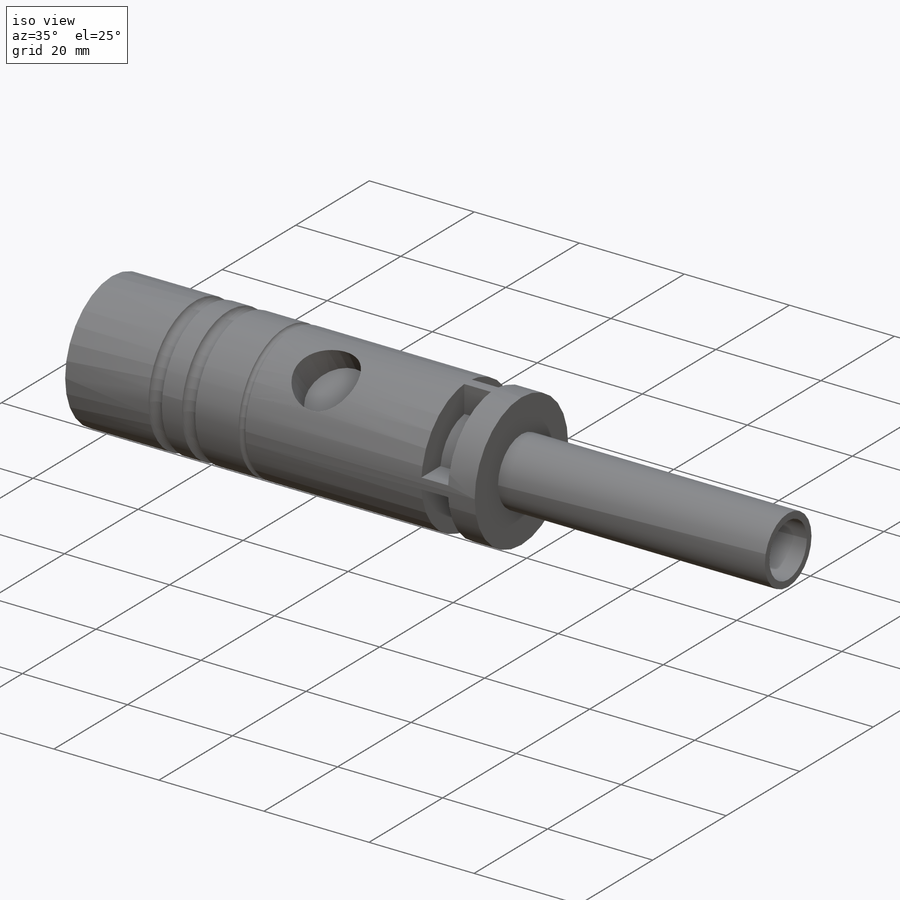
[diagram: iso view]
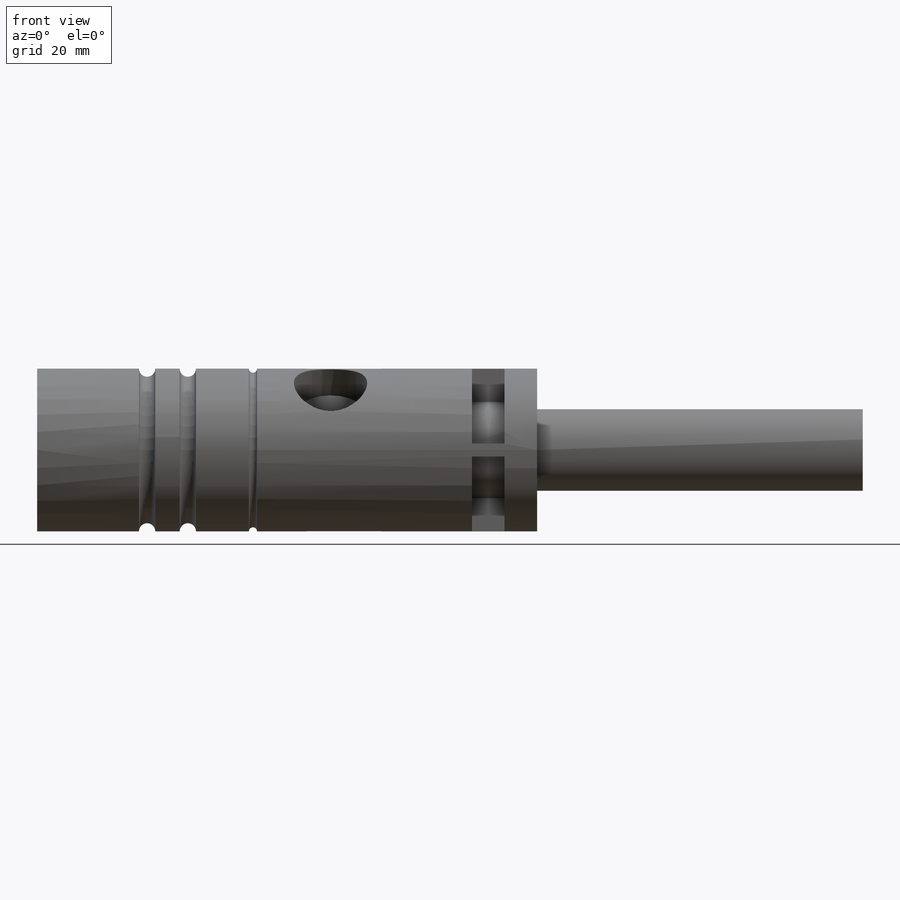
[diagram: front view]
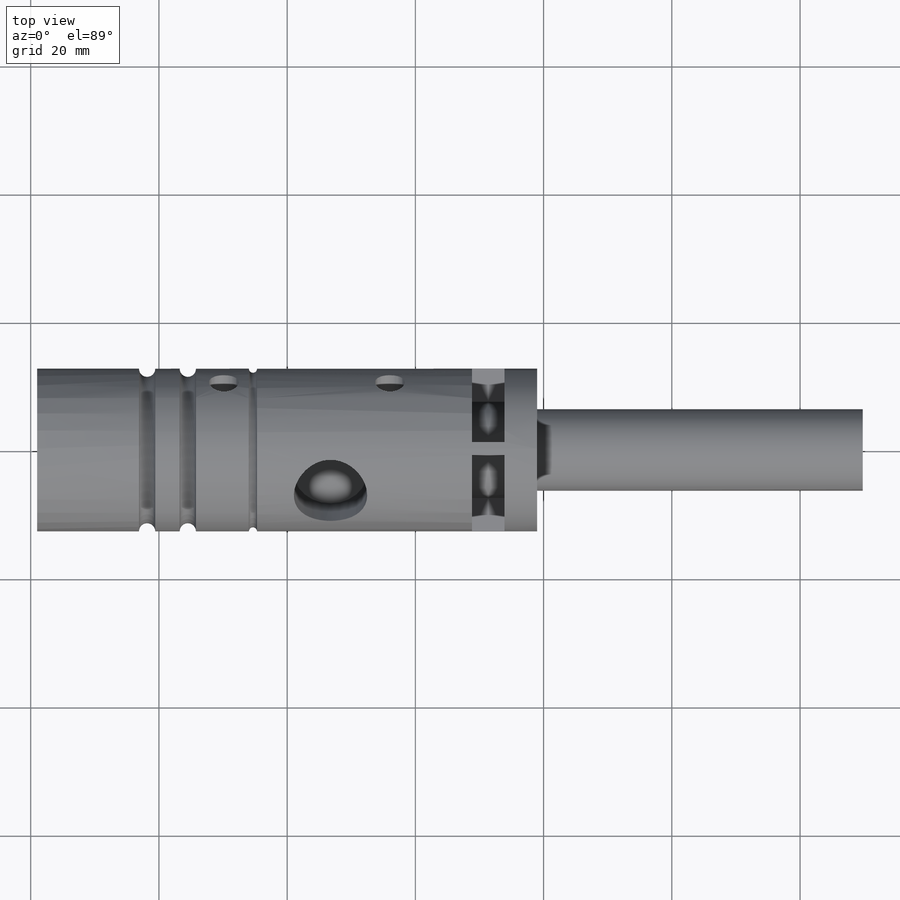
[diagram: top view]
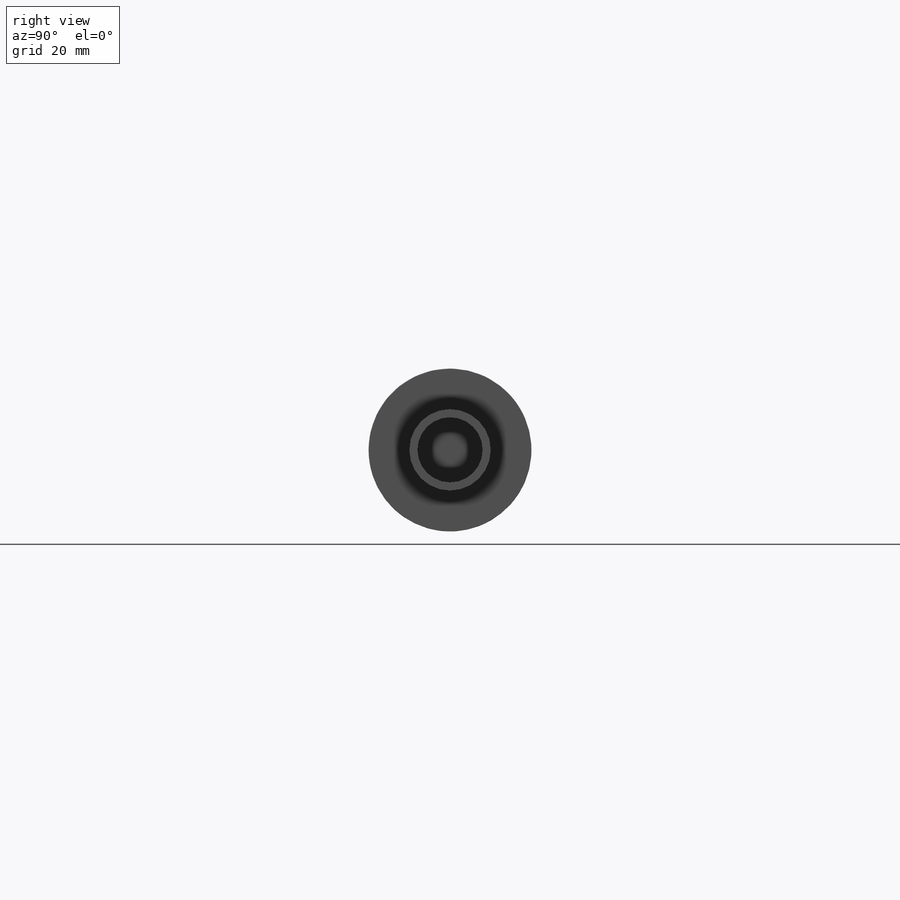
[diagram: right view]
SOLIDWORKS PART (.sldprt)
format: sldprt  version: not decoded by parser v0  size: 425,472 bytes
history: native  units: mm
features: sketch x14, cut_extrude x5, plane x5, extrude x3, material x1, pattern_circular x1, cut_revolve x1 (+13 scaffold rows collapsed)
feature tree (43):
  scaffold x13  (default folders/planes/origin — collapsed)
  material  "6061-T6 (SS)"
  sketch  "Sketch1"  dims[D1=25.4mm]
  extrude  "Boss-Extrude1"  Depth=77.978mm
  sketch  "Sketch2"  dims[D1=12.7mm]
  extrude  "Boss-Extrude2"  Depth=50.8mm
  sketch  "Sketch3"
  sketch  "Sketch4"  dims[D1=6.35mm D2=17.145mm]
  sketch  "Sketch5"  dims[D1=10.16mm]
  cut_extrude  "Cut-Extrude1"  Depth=50.8mm
  sketch  "Sketch6"  dims[D1=23.876mm]
  cut_extrude  "Cut-Extrude2"  Depth=11.684mm
  sketch  "Sketch7"  dims[D1=2.54mm]
  extrude  "Boss-Extrude4"  Depth=6.35mm
  plane  "Plane1"
  plane  "Plane2"
  sketch  "Sketch8"  dims[c1.D1=9.398mm c1.D2=9.398mm c1.D3=9.398mm c2.D2=~46.431277mm c2.D3=~3.74325mm]
  plane  "Plane3"
  plane  "Plane4"
  sketch  "Sketch9"  dims[c1.D1=4.064mm c1.D2=4.064mm c1.D3=4.064mm c2.D2=25.9588mm c2.D3=21.7678mm]
  sketch  "Sketch10"  dims[D1=11.43mm]
  cut_extrude  "Cut-Extrude3"  Depth=7.62mm
  sketch  "Sketch11"
  cut_extrude  "Cut-Extrude4"  [1 undecoded]
  plane  "Plane5"  Offset=5.08mm
  sketch  "Sketch12"  dims[c1.D1=0.762mm c2.D1=4.0]
  sketch  "Sketch13"  dims[D1=1.016mm D2=1.016mm]
  cut_extrude  "Cut-Extrude5"  Depth=5.08mm
  pattern_circular  "CirPattern1"  Count=4 Angle=360deg
  sketch  "Sketch14"  dims[D1=2.54mm D2=2.54mm D3=1.27mm D4=17.145mm D5=6.35mm D6=10.16mm]
  cut_revolve  "Cut-Revolve1"  Angle=360deg
decode coverage: 21 of 24 modeling features carry decoded parameters
note: ~ marks probable driven/reference dimensions
note: 1 parameter value undecoded
note: suppression state not decoded; provenance and decode notes live in map.json
